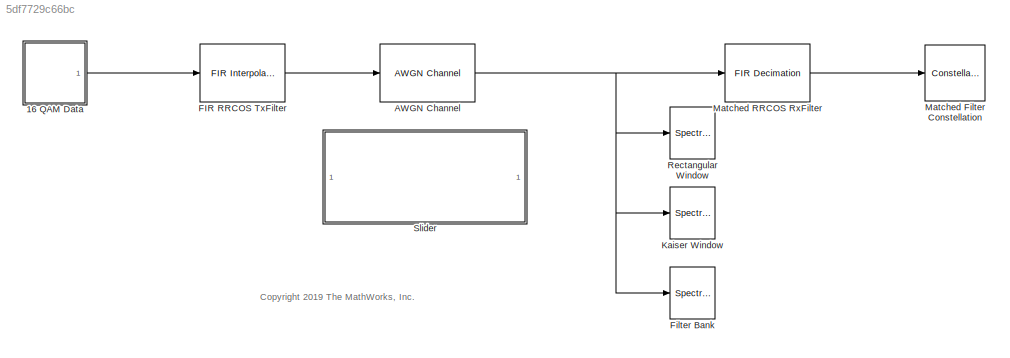
MODEL slx_5df7729c66bc
KIND model
CONFIG AbsTol = auto
CONFIG EnableMultiTasking = off
CONFIG FixedStep = auto
CONFIG MaxStep = auto
CONFIG MinStep = auto
CONFIG RelTol = 1e-3
CONFIG SampleTimeConstraint = Unconstrained
CONFIG Solver = FixedStepDiscrete
CONFIG SolverName = FixedStepDiscrete
CONFIG StartTime = 0.0
CONFIG StopTime = inf
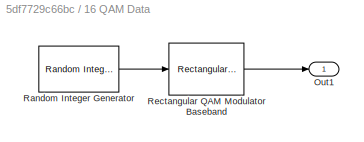
BLOCK [SubSystem] 16 QAM Data
  Ports = [0, 1]
  RequestExecContextInheritance = off
  Variant = off
BLOCK [Outport] 16 QAM Data/Out1
  IconDisplay = Port number
  VectorParamsAs1DForOutWhenUnconnected = on
BLOCK [Reference] 16 QAM Data/Random Integer Generator  REF=commrandsrc3/Random Integer
Generator
  Ports = [0, 1]
  SourceBlock = commrandsrc3/Random Integer\nGenerator
  SourceProductBaseCode = CM
  SourceProductName = Communications Toolbox
  SourceType = Random Integer Generator
BLOCK [Reference] 16 QAM Data/Rectangular QAM Modulator Baseband  REF=commdigbbndam3/Rectangular QAM
Modulator
Baseband
  Ports = [1, 1]
  SourceBlock = commdigbbndam3/Rectangular QAM\nModulator\nBaseband
  SourceProductBaseCode = CM
  SourceProductName = Communications Toolbox
  SourceType = Rectangular QAM Modulator Baseband
BLOCK [Reference] AWGN Channel  REF=commchan3/AWGN
Channel
  Ports = [1, 1]
  SourceBlock = commchan3/AWGN\nChannel
  SourceProductBaseCode = CM
  SourceProductName = Communications Toolbox
  SourceType = AWGN Channel
  UserDataPersistent = on
BLOCK [Reference] FIR RRCOS TxFilter  REF=dspmlti4/FIR
Interpolation
  Ports = [1, 1]
  SourceBlock = dspmlti4/FIR\nInterpolation
  SourceProductBaseCode = DS
  SourceProductName = DSP System Toolbox
  SourceType = FIR Interpolation
  UserDataPersistent = on
BLOCK [SpectrumAnalyzer] Filter Bank
  NumInputPorts = 1
  Ports = [1]
  ScopeSpecificationString = spbscopes.SpectrumAnalyzerBlockCfg('CurrentConfiguration', extmgr.ConfigurationSet(extmgr.Configuration('Core','General UI',true),extmgr.Configuration('Core','Source UI',true),extmgr.Configuration('Sources','Simulink',false),extmgr.Configuration('Sources','SimulinkEvent',false),extmgr.Configuration('Sources','Streaming',false),extmgr.Configuration('Sources','SPTool',false),extmgr.Configuration('So...<+3462ch>
BLOCK [SpectrumAnalyzer] Kaiser Window
  NumInputPorts = 1
  Ports = [1]
  ScopeSpecificationString = spbscopes.SpectrumAnalyzerBlockCfg('CurrentConfiguration', extmgr.ConfigurationSet(extmgr.Configuration('Core','General UI',true),extmgr.Configuration('Core','Source UI',true),extmgr.Configuration('Sources','WiredSimulink',true),extmgr.Configuration('Sources','SPTool',false),extmgr.Configuration('Sources','Simulink',false),extmgr.Configuration('Sources','Streaming',false),extmgr.Configuration('Sou...<+3246ch>
BLOCK [ConstellationDiagram] Matched Filter Constellation
  Ports = [1]
  ScopeSpecificationString = comm.scopes.ConstellationDiagramBlockCfg('CurrentConfiguration', extmgr.ConfigurationSet(extmgr.Configuration('Core','General UI',true),extmgr.Configuration('Core','Source UI',true),extmgr.Configuration('Sources','WiredSimulink',true),extmgr.Configuration('Visuals','Constellation',true,'MinYLim','-3.8712','MaxYLim','3.8781','MinXLim','-3.8712','MaxXLim','3.8781','LineProperties',struct('DisplayNam...<+752ch>
BLOCK [Reference] Matched RRCOS RxFilter  REF=dspmlti4/FIR
Decimation
  Ports = [1, 1]
  SourceBlock = dspmlti4/FIR\nDecimation
  SourceProductBaseCode = DS
  SourceProductName = DSP System Toolbox
  SourceType = FIR Decimation
  UserDataPersistent = on
BLOCK [SpectrumAnalyzer] Rectangular Window
  NumInputPorts = 1
  Ports = [1]
  ScopeSpecificationString = spbscopes.SpectrumAnalyzerBlockCfg('CurrentConfiguration', extmgr.ConfigurationSet(extmgr.Configuration('Core','General UI',true),extmgr.Configuration('Core','Source UI',true),extmgr.Configuration('Sources','Streaming',false),extmgr.Configuration('Sources','SimulinkEvent',false),extmgr.Configuration('Sources','Simulink',false),extmgr.Configuration('Sources','SPTool',false),extmgr.Configuration('So...<+3249ch>
BLOCK [SubSystem] Slider
  DialogController = hmiCreateDDGDialog
  IsWebBlock = on
  Ports = []
  RequestExecContextInheritance = off
  Variant = off
ANNOTATION (root): <copyright redacted>
LINE 16 QAM Data/Random Integer Generator:1 -> 16 QAM Data/Rectangular QAM Modulator Baseband:1
LINE 16 QAM Data/Rectangular QAM Modulator Baseband:1 -> 16 QAM Data/Out1:1
LINE 16 QAM Data:1 -> FIR RRCOS TxFilter:1
NET AWGN Channel:1 -> Filter Bank:1, Kaiser Window:1, Matched RRCOS RxFilter:1, Rectangular Window:1
LINE FIR RRCOS TxFilter:1 -> AWGN Channel:1
LINE Matched RRCOS RxFilter:1 -> Matched Filter Constellation:1
note: NET lines group one-source signal fan-out (src -> all destinations, sorted); 1:1 wires keep LINE
